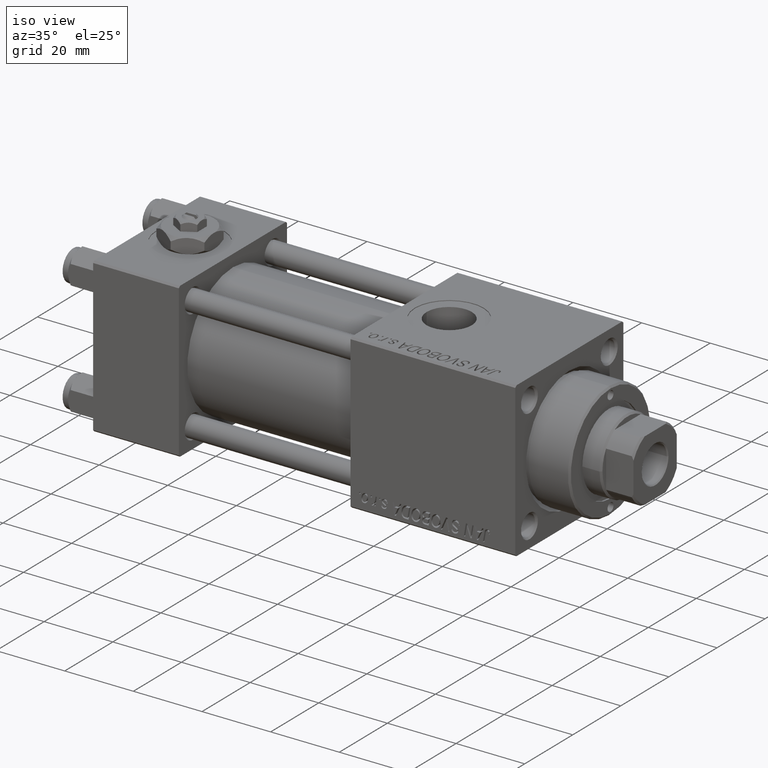
[diagram: clean part render]
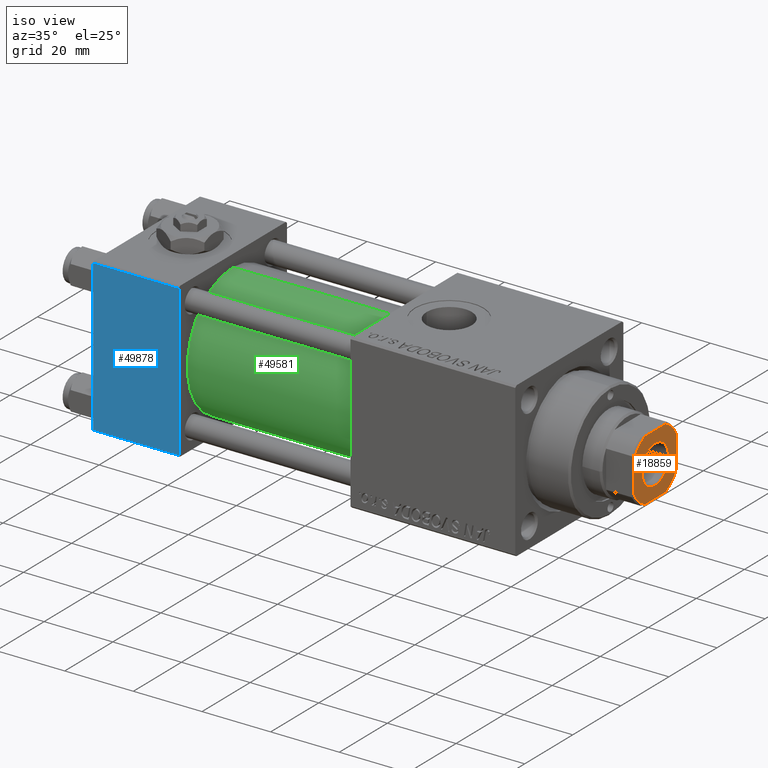
[diagram: same view with three faces highlighted in distinct colors, each labeled with its STEP entity id]
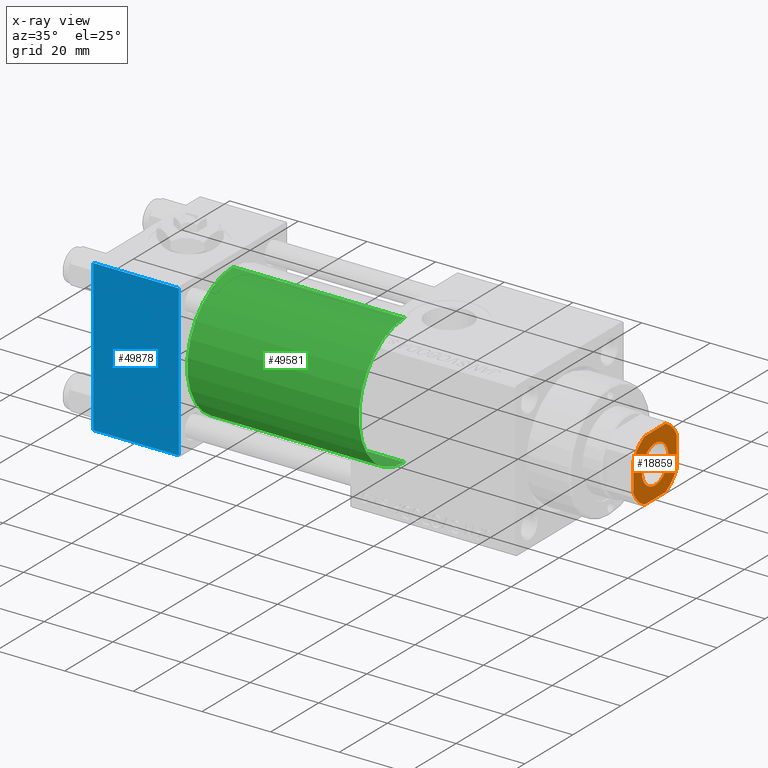
[diagram: x-ray of the same camera — body ghosted, the three highlighted faces saturated]
A machine part, iso view with three faces highlighted in distinct colors.
The next image is the same camera in x-ray (body ghosted, the three faces saturated) — at least one of them is partly hidden behind the body in this view.
Their STEP definitions:

[orange] entity #18859 — the highlighted planar face has unit normal (1, 0, 0).
#578 = EDGE_LOOP ( 'NONE', ( #25542, #44773, #15287, #10677, #35214, #12587, #17753, #44594 ) ) ;
#854 = DIRECTION ( 'NONE',  ( -0.000000000000000000, 0.000000000000000000, 1.000000000000000000 ) ) ;
#2103 = EDGE_CURVE ( 'NONE', #26095, #8755, #25230, .T. ) ;
#2289 = DIRECTION ( 'NONE',  ( -0.000000000000000000, 0.000000000000000000, 1.000000000000000000 ) ) ;
#3236 = CARTESIAN_POINT ( 'NONE',  ( -9.000000000000003553, 8.999999999999998224, 123.0000000000000000 ) ) ;
#3943 = PLANE ( 'NONE',  #39658 ) ;
#5014 = DIRECTION ( 'NONE',  ( 1.000000000000000000, 0.000000000000000000, 0.000000000000000000 ) ) ;
#5220 = DIRECTION ( 'NONE',  ( 1.000000000000000000, 0.000000000000000000, 0.000000000000000000 ) ) ;
#5722 = VERTEX_POINT ( 'NONE', #41715 ) ;
#5741 = ORIENTED_EDGE ( 'NONE', *, *, #46453, .T. ) ;
#7335 = CARTESIAN_POINT ( 'NONE',  ( -4.358898943540667759, -9.000000000000001776, 123.0000000000000000 ) ) ;
#7460 = CARTESIAN_POINT ( 'NONE',  ( -9.000000000000003553, -4.358898943540665094, 123.0000000000000000 ) ) ;
#8729 = CARTESIAN_POINT ( 'NONE',  ( 0.000000000000000000, 0.000000000000000000, 123.0000000000000000 ) ) ;
#8755 = VERTEX_POINT ( 'NONE', #7460 ) ;
#10096 = CIRCLE ( 'NONE', #34610, 9.999999999999966249 ) ;
#10646 = CARTESIAN_POINT ( 'NONE',  ( 4.358898943540667759, -9.000000000000001776, 123.0000000000000000 ) ) ;
#10677 = ORIENTED_EDGE ( 'NONE', *, *, #47688, .T. ) ;
#12011 = CARTESIAN_POINT ( 'NONE',  ( -9.000000000000003553, 8.999999999999998224, 123.0000000000000000 ) ) ;
#12240 = DIRECTION ( 'NONE',  ( 0.000000000000000000, -0.000000000000000000, -1.000000000000000000 ) ) ;
#12522 = DIRECTION ( 'NONE',  ( 1.000000000000000000, 0.000000000000000000, 0.000000000000000000 ) ) ;
#12587 = ORIENTED_EDGE ( 'NONE', *, *, #42974, .T. ) ;
#13291 = CARTESIAN_POINT ( 'NONE',  ( 8.999999999999996447, 8.999999999999998224, 123.0000000000000000 ) ) ;
#13312 = EDGE_CURVE ( 'NONE', #35095, #5722, #43863, .T. ) ;
#14032 = CARTESIAN_POINT ( 'NONE',  ( -9.000000000000001776, -9.000000000000001776, 123.0000000000000000 ) ) ;
#14380 = VECTOR ( 'NONE', #45325, 1000.000000000000000 ) ;
#14591 = CARTESIAN_POINT ( 'NONE',  ( 0.000000000000000000, 0.000000000000000000, 123.0000000000000000 ) ) ;
#15287 = ORIENTED_EDGE ( 'NONE', *, *, #47455, .T. ) ;
#16033 = AXIS2_PLACEMENT_3D ( 'NONE', #34094, #2289, #38306 ) ;
#17753 = ORIENTED_EDGE ( 'NONE', *, *, #49248, .T. ) ;
#18055 = VERTEX_POINT ( 'NONE', #44287 ) ;
#18292 = DIRECTION ( 'NONE',  ( 1.000000000000000000, 0.000000000000000000, 0.000000000000000000 ) ) ;
#18638 = CIRCLE ( 'NONE', #49954, 5.550000000000013145 ) ;
#18859 = ADVANCED_FACE ( 'NONE', ( #33357, #24056 ), #3943, .T. ) ;
#19128 = VERTEX_POINT ( 'NONE', #7335 ) ;
#19418 = EDGE_CURVE ( 'NONE', #39730, #18055, #10096, .T. ) ;
#19869 = ORIENTED_EDGE ( 'NONE', *, *, #13312, .T. ) ;
#21140 = EDGE_CURVE ( 'NONE', #30160, #26602, #49875, .T. ) ;
#21919 = AXIS2_PLACEMENT_3D ( 'NONE', #49037, #12240, #24401 ) ;
#24056 = FACE_OUTER_BOUND ( 'NONE', #578, .T. ) ;
#24394 = CARTESIAN_POINT ( 'NONE',  ( 0.000000000000000000, 0.000000000000000000, 123.0000000000000000 ) ) ;
#24401 = DIRECTION ( 'NONE',  ( 1.000000000000000000, 0.000000000000000000, 0.000000000000000000 ) ) ;
#24604 = CARTESIAN_POINT ( 'NONE',  ( 8.999999999999998224, -4.358898943540672200, 123.0000000000000000 ) ) ;
#24858 = DIRECTION ( 'NONE',  ( -0.000000000000000000, 0.000000000000000000, 1.000000000000000000 ) ) ;
#24923 = DIRECTION ( 'NONE',  ( 1.000000000000000000, 0.000000000000000000, 0.000000000000000000 ) ) ;
#25103 = EDGE_LOOP ( 'NONE', ( #19869, #5741 ) ) ;
#25230 = LINE ( 'NONE', #12011, #46148 ) ;
#25542 = ORIENTED_EDGE ( 'NONE', *, *, #45777, .T. ) ;
#26095 = VERTEX_POINT ( 'NONE', #35033 ) ;
#26306 = DIRECTION ( 'NONE',  ( 1.000000000000000000, 0.000000000000000000, 0.000000000000000000 ) ) ;
#26500 = DIRECTION ( 'NONE',  ( -0.000000000000000000, 0.000000000000000000, 1.000000000000000000 ) ) ;
#26602 = VERTEX_POINT ( 'NONE', #24604 ) ;
#27002 = VECTOR ( 'NONE', #50905, 1000.000000000000000 ) ;
#27779 = CIRCLE ( 'NONE', #43015, 9.999999999999998224 ) ;
#28109 = CARTESIAN_POINT ( 'NONE',  ( -4.358898943540671311, 8.999999999999998224, 123.0000000000000000 ) ) ;
#28891 = CARTESIAN_POINT ( 'NONE',  ( 8.999999999999998224, 4.358898943540600257, 123.0000000000000000 ) ) ;
#30160 = VERTEX_POINT ( 'NONE', #10646 ) ;
#30187 = LINE ( 'NONE', #14032, #41433 ) ;
#32659 = VERTEX_POINT ( 'NONE', #28109 ) ;
#33357 = FACE_BOUND ( 'NONE', #25103, .T. ) ;
#33493 = DIRECTION ( 'NONE',  ( 0.000000000000000000, -0.000000000000000000, -1.000000000000000000 ) ) ;
#34074 = CARTESIAN_POINT ( 'NONE',  ( 0.000000000000000000, 0.000000000000000000, 123.0000000000000000 ) ) ;
#34094 = CARTESIAN_POINT ( 'NONE',  ( 0.000000000000000000, 0.000000000000000000, 123.0000000000000000 ) ) ;
#34610 = AXIS2_PLACEMENT_3D ( 'NONE', #34074, #39252, #5220 ) ;
#35033 = CARTESIAN_POINT ( 'NONE',  ( -9.000000000000003553, 4.358898943540662430, 123.0000000000000000 ) ) ;
#35095 = VERTEX_POINT ( 'NONE', #38972 ) ;
#35214 = ORIENTED_EDGE ( 'NONE', *, *, #2103, .T. ) ;
#38306 = DIRECTION ( 'NONE',  ( 1.000000000000000000, 0.000000000000000000, 0.000000000000000000 ) ) ;
#38972 = CARTESIAN_POINT ( 'NONE',  ( 5.550000000000013145, 0.000000000000000000, 123.0000000000000000 ) ) ;
#39252 = DIRECTION ( 'NONE',  ( -0.000000000000000000, 0.000000000000000000, 1.000000000000000000 ) ) ;
#39658 = AXIS2_PLACEMENT_3D ( 'NONE', #8729, #24858, #5014 ) ;
#39730 = VERTEX_POINT ( 'NONE', #28891 ) ;
#41433 = VECTOR ( 'NONE', #12522, 1000.000000000000000 ) ;
#41715 = CARTESIAN_POINT ( 'NONE',  ( -5.550000000000013145, 6.796789735267826558E-16, 123.0000000000000000 ) ) ;
#42453 = LINE ( 'NONE', #3236, #27002 ) ;
#42974 = EDGE_CURVE ( 'NONE', #8755, #19128, #27779, .T. ) ;
#43015 = AXIS2_PLACEMENT_3D ( 'NONE', #24394, #854, #24923 ) ;
#43863 = CIRCLE ( 'NONE', #21919, 5.550000000000013145 ) ;
#44287 = CARTESIAN_POINT ( 'NONE',  ( 4.358898943540597593, 8.999999999999998224, 123.0000000000000000 ) ) ;
#44594 = ORIENTED_EDGE ( 'NONE', *, *, #21140, .T. ) ;
#44773 = ORIENTED_EDGE ( 'NONE', *, *, #19418, .T. ) ;
#45325 = DIRECTION ( 'NONE',  ( -1.927470528863119049E-16, 1.000000000000000000, -0.000000000000000000 ) ) ;
#45364 = DIRECTION ( 'NONE',  ( 9.637352644315595243E-17, -1.000000000000000000, 0.000000000000000000 ) ) ;
#45634 = AXIS2_PLACEMENT_3D ( 'NONE', #14591, #26500, #18292 ) ;
#45777 = EDGE_CURVE ( 'NONE', #26602, #39730, #49297, .T. ) ;
#46148 = VECTOR ( 'NONE', #45364, 1000.000000000000000 ) ;
#46453 = EDGE_CURVE ( 'NONE', #5722, #35095, #18638, .T. ) ;
#47455 = EDGE_CURVE ( 'NONE', #18055, #32659, #42453, .T. ) ;
#47688 = EDGE_CURVE ( 'NONE', #32659, #26095, #51504, .T. ) ;
#49037 = CARTESIAN_POINT ( 'NONE',  ( 0.000000000000000000, 0.000000000000000000, 123.0000000000000000 ) ) ;
#49248 = EDGE_CURVE ( 'NONE', #19128, #30160, #30187, .T. ) ;
#49297 = LINE ( 'NONE', #13291, #14380 ) ;
#49875 = CIRCLE ( 'NONE', #16033, 9.999999999999998224 ) ;
#49891 = CARTESIAN_POINT ( 'NONE',  ( 0.000000000000000000, 0.000000000000000000, 123.0000000000000000 ) ) ;
#49954 = AXIS2_PLACEMENT_3D ( 'NONE', #49891, #33493, #26306 ) ;
#50905 = DIRECTION ( 'NONE',  ( -1.000000000000000000, -0.000000000000000000, -0.000000000000000000 ) ) ;
#51504 = CIRCLE ( 'NONE', #45634, 9.999999999999996447 ) ;

[blue] entity #49878 — the highlighted planar face has unit normal (0, 1, 0).
#328 = CARTESIAN_POINT ( 'NONE',  ( 25.00000000000000000, -22.50000000000000000, -21.99999999999998579 ) ) ;
#467 = ORIENTED_EDGE ( 'NONE', *, *, #15974, .T. ) ;
#1779 = DIRECTION ( 'NONE',  ( 0.000000000000000000, 0.000000000000000000, -1.000000000000000000 ) ) ;
#6225 = VERTEX_POINT ( 'NONE', #10907 ) ;
#10907 = CARTESIAN_POINT ( 'NONE',  ( 25.00000000000000000, -22.50000000000000000, -21.99999999999997158 ) ) ;
#11079 = DIRECTION ( 'NONE',  ( -1.000000000000000000, 0.000000000000000000, 0.000000000000000000 ) ) ;
#13590 = VECTOR ( 'NONE', #11079, 1000.000000000000000 ) ;
#15974 = EDGE_CURVE ( 'NONE', #20683, #6225, #23611, .T. ) ;
#16086 = ORIENTED_EDGE ( 'NONE', *, *, #20165, .T. ) ;
#16253 = CARTESIAN_POINT ( 'NONE',  ( 25.00000000000000000, -22.50000000000000000, 22.50000000000000000 ) ) ;
#20165 = EDGE_CURVE ( 'NONE', #28014, #20683, #38039, .T. ) ;
#20229 = VECTOR ( 'NONE', #33180, 1000.000000000000000 ) ;
#20683 = VERTEX_POINT ( 'NONE', #23878 ) ;
#23226 = CARTESIAN_POINT ( 'NONE',  ( 25.00000000000000000, -22.50000000000000000, 22.00000000000000000 ) ) ;
#23611 = LINE ( 'NONE', #328, #20229 ) ;
#23683 = AXIS2_PLACEMENT_3D ( 'NONE', #47457, #51677, #52192 ) ;
#23878 = CARTESIAN_POINT ( 'NONE',  ( 0.000000000000000000, -22.50000000000000000, -21.99999999999997158 ) ) ;
#24783 = CARTESIAN_POINT ( 'NONE',  ( 0.000000000000000000, -22.50000000000000000, 22.00000000000000000 ) ) ;
#25644 = VECTOR ( 'NONE', #36382, 1000.000000000000000 ) ;
#27240 = ORIENTED_EDGE ( 'NONE', *, *, #50540, .T. ) ;
#27590 = FACE_OUTER_BOUND ( 'NONE', #29780, .T. ) ;
#28014 = VERTEX_POINT ( 'NONE', #24783 ) ;
#29780 = EDGE_LOOP ( 'NONE', ( #16086, #467, #35339, #27240 ) ) ;
#31459 = LINE ( 'NONE', #23226, #13590 ) ;
#31631 = LINE ( 'NONE', #16253, #25644 ) ;
#32163 = EDGE_CURVE ( 'NONE', #37523, #6225, #31631, .T. ) ;
#33180 = DIRECTION ( 'NONE',  ( 1.000000000000000000, 0.000000000000000000, 0.000000000000000000 ) ) ;
#35339 = ORIENTED_EDGE ( 'NONE', *, *, #32163, .F. ) ;
#36061 = PLANE ( 'NONE',  #23683 ) ;
#36382 = DIRECTION ( 'NONE',  ( 0.000000000000000000, 0.000000000000000000, -1.000000000000000000 ) ) ;
#37523 = VERTEX_POINT ( 'NONE', #48718 ) ;
#38039 = LINE ( 'NONE', #50215, #45611 ) ;
#45611 = VECTOR ( 'NONE', #1779, 1000.000000000000000 ) ;
#47457 = CARTESIAN_POINT ( 'NONE',  ( 25.00000000000000000, -22.50000000000000000, 22.50000000000000000 ) ) ;
#48718 = CARTESIAN_POINT ( 'NONE',  ( 25.00000000000000000, -22.50000000000000000, 22.00000000000000000 ) ) ;
#49878 = ADVANCED_FACE ( 'NONE', ( #27590 ), #36061, .F. ) ;
#50215 = CARTESIAN_POINT ( 'NONE',  ( 0.000000000000000000, -22.50000000000000000, 22.50000000000000000 ) ) ;
#50540 = EDGE_CURVE ( 'NONE', #37523, #28014, #31459, .T. ) ;
#51677 = DIRECTION ( 'NONE',  ( -0.000000000000000000, 1.000000000000000000, 0.000000000000000000 ) ) ;
#52192 = DIRECTION ( 'NONE',  ( 0.000000000000000000, -0.000000000000000000, 1.000000000000000000 ) ) ;

[green] entity #49581 — the highlighted cylindrical surface (partial cylindrical patch) has radius 19 mm, axis along (-1, -0, -0).
#1430 = DIRECTION ( 'NONE',  ( -1.000000000000000000, -0.000000000000000000, -0.000000000000000000 ) ) ;
#1576 = EDGE_CURVE ( 'NONE', #42568, #34732, #4702, .T. ) ;
#3737 = AXIS2_PLACEMENT_3D ( 'NONE', #47691, #6413, #19101 ) ;
#3951 = DIRECTION ( 'NONE',  ( -1.000000000000000000, -0.000000000000000000, -0.000000000000000000 ) ) ;
#4702 = CIRCLE ( 'NONE', #40203, 19.00000000000000000 ) ;
#5648 = ORIENTED_EDGE ( 'NONE', *, *, #11958, .T. ) ;
#6413 = DIRECTION ( 'NONE',  ( 1.000000000000000000, -0.000000000000000000, 0.000000000000000000 ) ) ;
#7934 = LINE ( 'NONE', #24064, #48114 ) ;
#10530 = DIRECTION ( 'NONE',  ( 1.000000000000000000, 0.000000000000000000, 0.000000000000000000 ) ) ;
#11838 = AXIS2_PLACEMENT_3D ( 'NONE', #16783, #1430, #24724 ) ;
#11958 = EDGE_CURVE ( 'NONE', #42568, #50211, #31040, .T. ) ;
#13804 = ORIENTED_EDGE ( 'NONE', *, *, #1576, .F. ) ;
#14134 = EDGE_LOOP ( 'NONE', ( #30804, #13804, #5648, #38605 ) ) ;
#16768 = VECTOR ( 'NONE', #26800, 1000.000000000000000 ) ;
#16783 = CARTESIAN_POINT ( 'NONE',  ( 75.00000000000001421, -2.602085213965210642E-15, 0.000000000000000000 ) ) ;
#17049 = CYLINDRICAL_SURFACE ( 'NONE', #11838, 19.00000000000000000 ) ;
#19101 = DIRECTION ( 'NONE',  ( 0.000000000000000000, 0.000000000000000000, 1.000000000000000000 ) ) ;
#20643 = CIRCLE ( 'NONE', #3737, 19.00000000000000000 ) ;
#22173 = DIRECTION ( 'NONE',  ( 0.000000000000000000, 0.000000000000000000, -1.000000000000000000 ) ) ;
#23731 = VERTEX_POINT ( 'NONE', #30001 ) ;
#24064 = CARTESIAN_POINT ( 'NONE',  ( 75.00000000000001421, -2.752562955852396712E-16, -19.00000000000000000 ) ) ;
#24724 = DIRECTION ( 'NONE',  ( 0.000000000000000000, 0.000000000000000000, 1.000000000000000000 ) ) ;
#26241 = CARTESIAN_POINT ( 'NONE',  ( 25.00000000000000000, -2.602085213965210642E-15, 19.00000000000000000 ) ) ;
#26800 = DIRECTION ( 'NONE',  ( -1.000000000000000000, -0.000000000000000000, -0.000000000000000000 ) ) ;
#30001 = CARTESIAN_POINT ( 'NONE',  ( 25.00000000000000000, -2.752562955852396712E-16, -19.00000000000000000 ) ) ;
#30659 = CARTESIAN_POINT ( 'NONE',  ( 75.00000000000001421, -2.602085213965210642E-15, 0.000000000000000000 ) ) ;
#30804 = ORIENTED_EDGE ( 'NONE', *, *, #43301, .F. ) ;
#31040 = LINE ( 'NONE', #43206, #16768 ) ;
#34732 = VERTEX_POINT ( 'NONE', #37737 ) ;
#35245 = EDGE_CURVE ( 'NONE', #50211, #23731, #20643, .T. ) ;
#35857 = CARTESIAN_POINT ( 'NONE',  ( 75.00000000000001421, -2.602085213965210642E-15, 19.00000000000000000 ) ) ;
#37737 = CARTESIAN_POINT ( 'NONE',  ( 75.00000000000001421, -2.752562955852396712E-16, -19.00000000000000000 ) ) ;
#38605 = ORIENTED_EDGE ( 'NONE', *, *, #35245, .T. ) ;
#40203 = AXIS2_PLACEMENT_3D ( 'NONE', #30659, #10530, #22173 ) ;
#42568 = VERTEX_POINT ( 'NONE', #35857 ) ;
#43206 = CARTESIAN_POINT ( 'NONE',  ( 75.00000000000001421, -2.602085213965210642E-15, 19.00000000000000000 ) ) ;
#43301 = EDGE_CURVE ( 'NONE', #34732, #23731, #7934, .T. ) ;
#47691 = CARTESIAN_POINT ( 'NONE',  ( 25.00000000000000000, -2.602085213965210642E-15, 0.000000000000000000 ) ) ;
#48114 = VECTOR ( 'NONE', #3951, 1000.000000000000000 ) ;
#49350 = FACE_OUTER_BOUND ( 'NONE', #14134, .T. ) ;
#49581 = ADVANCED_FACE ( 'NONE', ( #49350 ), #17049, .T. ) ;
#50211 = VERTEX_POINT ( 'NONE', #26241 ) ;